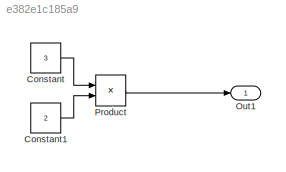
MODEL slx_e382e1c185a9
KIND model
CONFIG AbsTol = auto
CONFIG EnableMultiTasking = off
CONFIG FixedStep = auto
CONFIG MaxStep = auto
CONFIG MinStep = auto
CONFIG RelTol = 1e-3
CONFIG SampleTimeConstraint = Unconstrained
CONFIG SolverName = VariableStepAuto
CONFIG StartTime = 0.0
CONFIG StopTime = 10.0
BLOCK [Constant] Constant
  Value = 3
BLOCK [Constant] Constant1
  Value = 2
BLOCK [Outport] Out1
BLOCK [Product] Product
  Ports = [2, 1]
LINE Constant1:1 -> Product:2
LINE Constant:1 -> Product:1
LINE Product:1 -> Out1:1
